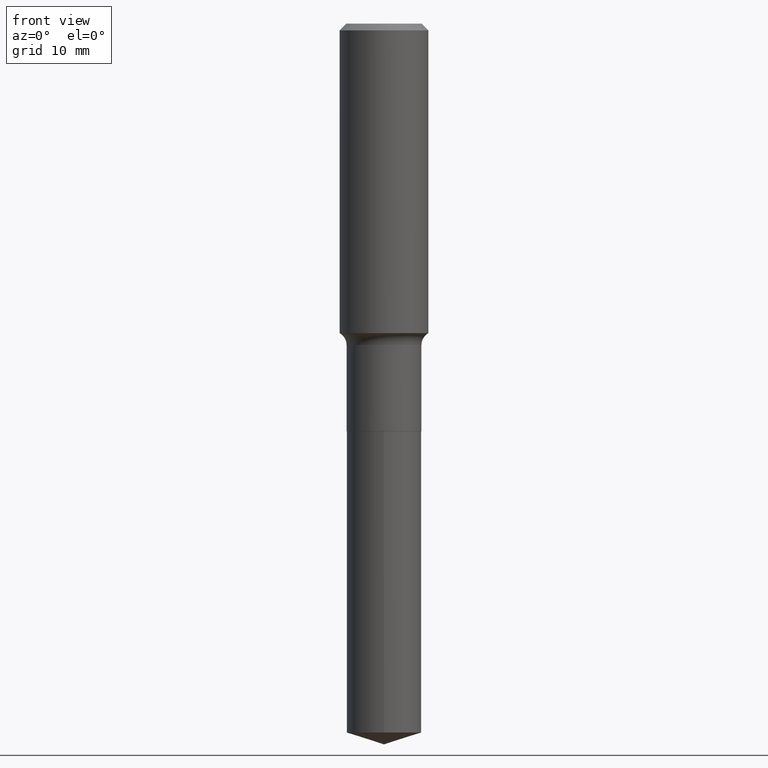
[diagram: clean part render]
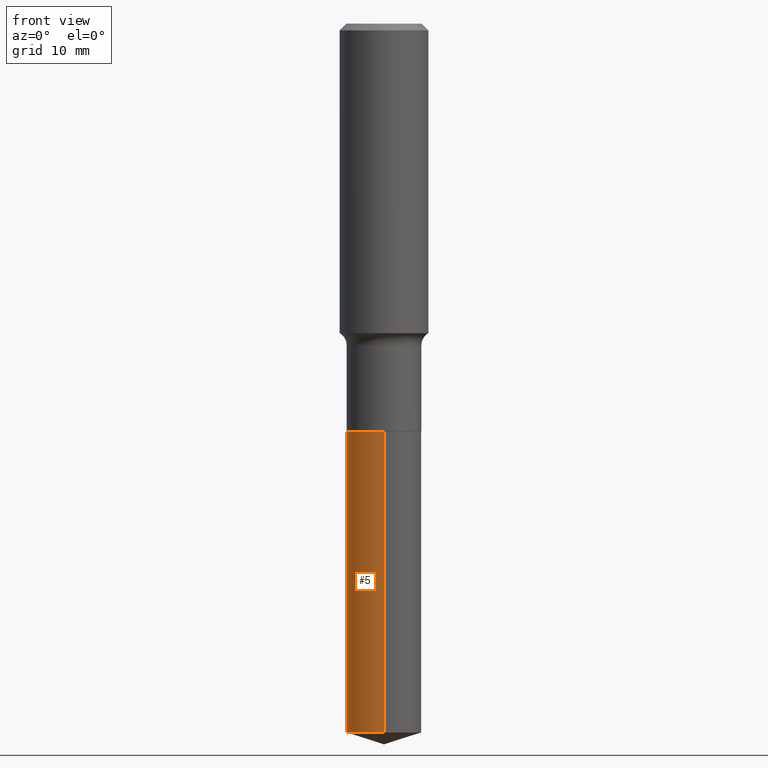
[diagram: same view with one face highlighted and labeled with its STEP entity id]
A machine part, front view. The second image highlights one B-rep face of the part: STEP entity #5.
In plain terms, the highlighted cylindrical surface (partial cylindrical patch) has radius 5.3581 mm, axis along (-0, 0, 1).
Its self-contained STEP definition (entity closure, byte-faithful):
#1 = FACE_OUTER_BOUND ( 'NONE', #180, .T. ) ;
#5 = ADVANCED_FACE ( 'NONE', ( #1 ), #83, .T. ) ;
#7 = ORIENTED_EDGE ( 'NONE', *, *, #14, .T. ) ;
#14 = EDGE_CURVE ( 'NONE', #29, #36, #197, .T. ) ;
#17 = CARTESIAN_POINT ( 'NONE',  ( 1.498889901086028954E-15, 0.2109499999999919495, -2.296900000000000830 ) ) ;
#29 = VERTEX_POINT ( 'NONE', #459 ) ;
#36 = VERTEX_POINT ( 'NONE', #116 ) ;
#47 = CARTESIAN_POINT ( 'NONE',  ( 5.616997300926640597E-29, -8.019583487188821005E-15, -2.296899999999999942 ) ) ;
#53 = CARTESIAN_POINT ( 'NONE',  ( 9.772397916556006404E-29, -1.395143739550827002E-14, -3.995987720485978834 ) ) ;
#71 = EDGE_CURVE ( 'NONE', #172, #29, #416, .T. ) ;
#83 = CYLINDRICAL_SURFACE ( 'NONE', #405, 0.2109499999999999986 ) ;
#91 = CARTESIAN_POINT ( 'NONE',  ( 1.498889901086028757E-15, 0.2109499999999859821, -3.995987720485979278 ) ) ;
#93 = DIRECTION ( 'NONE',  ( -2.445665733162278682E-29, 3.491199328203490904E-15, 1.000000000000000000 ) ) ;
#116 = CARTESIAN_POINT ( 'NONE',  ( -1.473055976857861753E-15, -0.2109500000000080200, -2.296899999999999054 ) ) ;
#144 = DIRECTION ( 'NONE',  ( -6.982962677686265922E-15, -1.000000000000000000, 3.885064698266314085E-15 ) ) ;
#147 = AXIS2_PLACEMENT_3D ( 'NONE', #53, #341, #389 ) ;
#161 = CIRCLE ( 'NONE', #222, 0.2109499999999999986 ) ;
#167 = CARTESIAN_POINT ( 'NONE',  ( 1.498889901085987144E-15, 0.2109499999999919773, -2.296900000000000830 ) ) ;
#172 = VERTEX_POINT ( 'NONE', #91 ) ;
#180 = EDGE_LOOP ( 'NONE', ( #399, #194, #7, #302 ) ) ;
#194 = ORIENTED_EDGE ( 'NONE', *, *, #71, .T. ) ;
#197 = LINE ( 'NONE', #339, #380 ) ;
#222 = AXIS2_PLACEMENT_3D ( 'NONE', #323, #402, #144 ) ;
#223 = VERTEX_POINT ( 'NONE', #17 ) ;
#231 = DIRECTION ( 'NONE',  ( -6.982962677686265922E-15, -1.000000000000000000, 3.885064698266314085E-15 ) ) ;
#301 = EDGE_CURVE ( 'NONE', #172, #223, #438, .T. ) ;
#302 = ORIENTED_EDGE ( 'NONE', *, *, #476, .F. ) ;
#323 = CARTESIAN_POINT ( 'NONE',  ( 5.616997300926640597E-29, -8.019583487188821005E-15, -2.296899999999999942 ) ) ;
#339 = CARTESIAN_POINT ( 'NONE',  ( -1.473055976857861753E-15, -0.2109500000000080200, -2.296899999999999054 ) ) ;
#341 = DIRECTION ( 'NONE',  ( -2.445665733162278401E-29, 3.491199328203490904E-15, 1.000000000000000000 ) ) ;
#347 = DIRECTION ( 'NONE',  ( -2.445665733162278682E-29, 3.491199328203490904E-15, 1.000000000000000000 ) ) ;
#380 = VECTOR ( 'NONE', #347, 39.37007874015748143 ) ;
#384 = DIRECTION ( 'NONE',  ( -2.445665733162278401E-29, 3.491199328203490904E-15, 1.000000000000000000 ) ) ;
#389 = DIRECTION ( 'NONE',  ( -6.982962677686265922E-15, -1.000000000000000000, 2.590043132177542855E-15 ) ) ;
#399 = ORIENTED_EDGE ( 'NONE', *, *, #301, .F. ) ;
#402 = DIRECTION ( 'NONE',  ( -2.445665733162278401E-29, 3.491199328203490904E-15, 1.000000000000000000 ) ) ;
#405 = AXIS2_PLACEMENT_3D ( 'NONE', #47, #384, #231 ) ;
#416 = CIRCLE ( 'NONE', #147, 0.2109499999999999986 ) ;
#438 = LINE ( 'NONE', #167, #473 ) ;
#459 = CARTESIAN_POINT ( 'NONE',  ( -1.473055976857819549E-15, -0.2109500000000139319, -3.995987720485978389 ) ) ;
#473 = VECTOR ( 'NONE', #93, 39.37007874015748143 ) ;
#476 = EDGE_CURVE ( 'NONE', #223, #36, #161, .T. ) ;